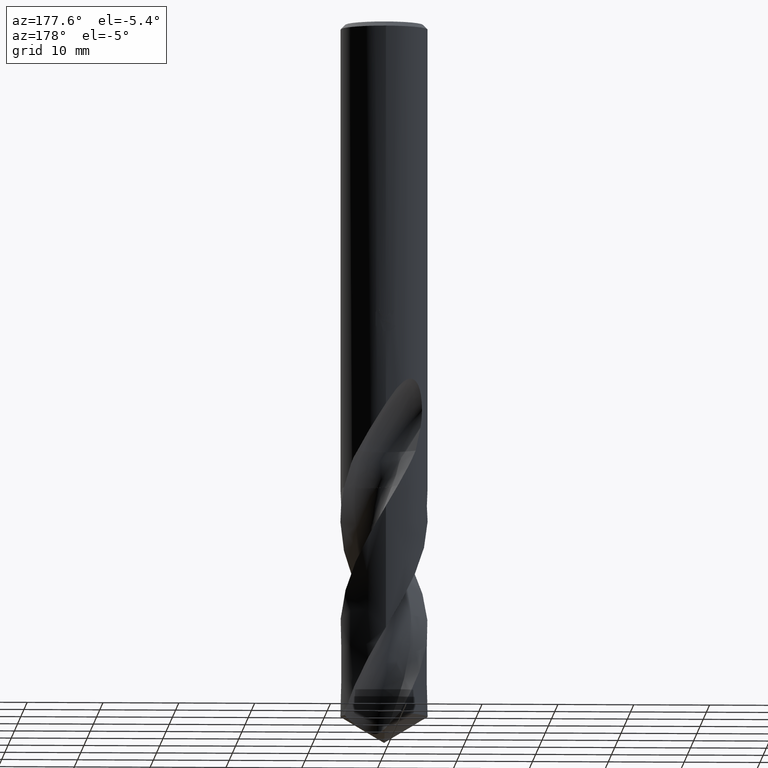
[diagram: clean part render]
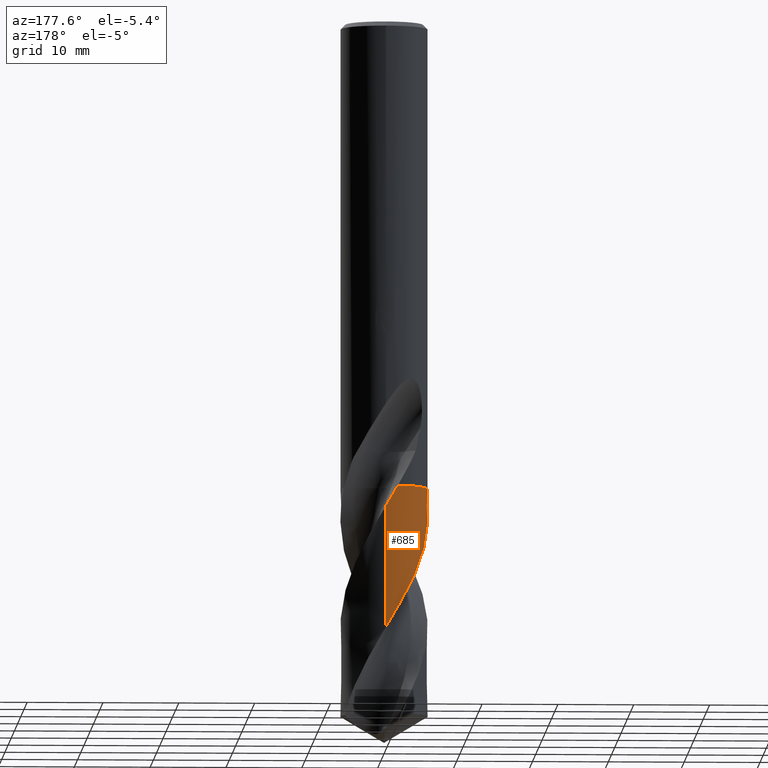
[diagram: same view with one face highlighted and labeled with its STEP entity id]
A machine part, auxiliary view. The second image highlights one B-rep face of the part: STEP entity #685.
In plain terms, the highlighted conical surface has half-angle 0 deg.
Its self-contained STEP definition (entity closure, byte-faithful):
#267=VERTEX_POINT('',#742);
#273=EDGE_CURVE('',#299,#319,#749,.T.);
#275=VERTEX_POINT('',#751);
#279=VERTEX_POINT('',#755);
#287=EDGE_CURVE('',#319,#267,#763,.T.);
#299=VERTEX_POINT('',#775);
#319=VERTEX_POINT('',#797);
#351=EDGE_CURVE('',#267,#275,#832,.T.);
#411=EDGE_CURVE('',#279,#489,#901,.T.);
#489=VERTEX_POINT('',#984);
#623=EDGE_CURVE('',#489,#299,#1131,.T.);
#667=EDGE_CURVE('',#275,#279,#1181,.T.);
#685=ADVANCED_FACE('',(#1199),#1200,.T.);
#742=CARTESIAN_POINT('',(3.20041766304614E-015,5.7499624244146,-80.2178718951749));
#749=B_SPLINE_CURVE_WITH_KNOTS('',3,(#1302,#1303,#1304,#1305,#1306,#1307,#1308,#1309,#1310,#1311,#1312,#1313,#1314,#1315,#1316,#1317,#1318,#1319,#1320,#1321,#1322,#1323,#1324,#1325,#1326,#1327,#1328,#1329,#1330,#1331,#1332,#1333,#1334,#1335,#1336,#1337,#1338,#1339,#1340,#1341,#1342,#1343,#1344,#1345,#1346,#1347,#1348,#1349,#1350,#1351,#1352,#1353,#1354,#1355),.UNSPECIFIED.,.F.,.F.,(4,2,2,2,2,2,2,2,2,2,2,2,2,2,2,2,2,2,2,2,2,2,2,2,2,2,4),(0.0,2.99058218471604,5.09417590476594,6.14555053451025,8.24858072771413,8.77354625455534,10.9154304070789,11.4506291270123,13.5907262284437,14.6614087604156,15.7347783019599,16.2721043805413,17.3438532425549,19.4880628600157,19.7297798634997,21.6359597791469,23.3095110379276,24.7746160400933,25.415098701845,27.8175177233194,28.0428586697684,29.7904662784701,30.446107516333,31.019588796564,33.0280774075556,34.0325649657904,35.0369068433877),.UNSPECIFIED.);
#751=CARTESIAN_POINT('',(-5.36179557689107,-2.07665557865828,-61.405));
#755=CARTESIAN_POINT('',(-5.36071411218029,-2.07944565148289,-61.4));
#763=LINE('',#1389,#1390);
#775=CARTESIAN_POINT('',(-1.61658313120639,5.51797147334416,-61.405));
#797=CARTESIAN_POINT('',(-1.18986122117529E-014,5.74990918113268,-64.1676571706662));
#832=B_SPLINE_CURVE_WITH_KNOTS('',3,(#2861,#2862,#2863,#2864,#2865,#2866,#2867,#2868,#2869,#2870,#2871,#2872,#2873,#2874,#2875,#2876,#2877,#2878,#2879,#2880,#2881,#2882,#2883,#2884,#2885,#2886,#2887,#2888,#2889,#2890,#2891,#2892,#2893,#2894,#2895,#2896,#2897,#2898,#2899,#2900,#2901,#2902,#2903,#2904,#2905,#2906,#2907,#2908,#2909,#2910),.UNSPECIFIED.,.F.,.F.,(4,2,2,2,2,2,2,2,2,2,2,2,2,2,2,2,2,2,2,2,2,2,2,2,4),(0.0,0.941647731960947,1.98477535587764,4.07382297962059,4.59460417437471,5.92103137837952,8.06810609950576,9.14297982474527,10.216909271789,11.9639145555234,13.038573890981,14.9671165081396,15.9034067747389,18.060923154003,18.4564625276565,21.040035445868,21.1159693745982,23.4712200408874,24.1761701578863,25.5453604956562,27.9409924483365,28.8397218571972,30.4101824918901,32.7727497577014,35.1194182658402),.UNSPECIFIED.);
#901=CIRCLE('',#4273,5.7499);
#984=CARTESIAN_POINT('',(-1.61943290344046,5.51713576788304,-61.4));
#1131=B_SPLINE_CURVE_WITH_KNOTS('',3,(#6290,#6291,#6292,#6293),.UNSPECIFIED.,.F.,.F.,(4,4),(0.0,0.00987606609193718),.UNSPECIFIED.);
#1181=B_SPLINE_CURVE_WITH_KNOTS('',3,(#6586,#6587,#6588,#6589),.UNSPECIFIED.,.F.,.F.,(4,4),(0.0,0.0119213895809713),.UNSPECIFIED.);
#1199=FACE_OUTER_BOUND('',#6653,.T.);
#1200=CONICAL_SURFACE('',#6654,5.74995,3.31729405725101E-006);
#1302=CARTESIAN_POINT('',(-1.61734998715461,5.51774674740223,-61.4036546112559));
#1303=CARTESIAN_POINT('',(-1.12883666681916,5.66094167760172,-62.2607317719156));
#1304=CARTESIAN_POINT('',(-0.62351901038473,5.73860128513405,-63.1164037456356));
#1305=CARTESIAN_POINT('',(0.243047594537756,5.7559100260359,-64.5774479238013));
#1306=CARTESIAN_POINT('',(0.600793689765306,5.72962957079828,-65.179793124741));
#1307=CARTESIAN_POINT('',(1.1301806195747,5.64058713684087,-66.0846791022338));
#1308=CARTESIAN_POINT('',(1.30507766635044,5.60270392521229,-66.3859817805289));
#1309=CARTESIAN_POINT('',(1.82357919614719,5.46480401497973,-67.2908543297883));
#1310=CARTESIAN_POINT('',(2.16001318945741,5.34078687680789,-67.8930170396615));
#1311=CARTESIAN_POINT('',(2.56336696490773,5.14769425590522,-68.646784689177));
#1312=CARTESIAN_POINT('',(2.64301898605191,5.10725554911913,-68.7973091529076));
#1313=CARTESIAN_POINT('',(3.04267670377315,4.89250051566813,-69.5623186996234));
#1314=CARTESIAN_POINT('',(3.34658670263547,4.6898706323283,-70.1756803008984));
#1315=CARTESIAN_POINT('',(3.69992750724707,4.40233402303483,-70.9435928288055));
#1316=CARTESIAN_POINT('',(3.76918381363993,4.34318605150958,-71.0970551604285));
#1317=CARTESIAN_POINT('',(4.10819109300873,4.03944264709741,-71.8645219397154));
#1318=CARTESIAN_POINT('',(4.35572550083248,3.7712159714299,-72.4774941890765));
#1319=CARTESIAN_POINT('',(4.68655653186224,3.33634461649002,-73.398551971627));
#1320=CARTESIAN_POINT('',(4.78990188157311,3.18619475681996,-73.705452087709));
#1321=CARTESIAN_POINT('',(4.98220377155731,2.87625326500558,-74.3205926389808));
#1322=CARTESIAN_POINT('',(5.07103704229249,2.71657744982027,-74.628428583419));
#1323=CARTESIAN_POINT('',(5.19271886272451,2.4710123034708,-75.0905236978622));
#1324=CARTESIAN_POINT('',(5.23135550118806,2.38812882186597,-75.2446489876867));
#1325=CARTESIAN_POINT('',(5.3410969702307,2.13725160154031,-75.706251860882));
#1326=CARTESIAN_POINT('',(5.40618787373614,1.96679592626463,-76.0134292855065));
#1327=CARTESIAN_POINT('',(5.57685362917018,1.44696884791411,-76.936128870833));
#1328=CARTESIAN_POINT('',(5.65742561426128,1.09026417649023,-77.5500640594125));
#1329=CARTESIAN_POINT('',(5.70885943819984,0.687465291477992,-78.2345355293048));
#1330=CARTESIAN_POINT('',(5.71363162055675,0.646607004588638,-78.3038700195977));
#1331=CARTESIAN_POINT('',(5.75213772172567,0.28311966360785,-78.9201132391666));
#1332=CARTESIAN_POINT('',(5.75895242954577,-0.0417968041966504,-79.466457137538));
#1333=CARTESIAN_POINT('',(5.72022476129946,-0.649790979499311,-80.493534346358));
#1334=CARTESIAN_POINT('',(5.68102735739467,-0.932255492981021,-80.9729007842047));
#1335=CARTESIAN_POINT('',(5.56859860057988,-1.4542962093602,-81.8735239374303));
#1336=CARTESIAN_POINT('',(5.50031639808184,-1.69435900848095,-82.2934833436511));
#1337=CARTESIAN_POINT('',(5.38007002670866,-2.03196968231927,-82.8975889133944));
#1338=CARTESIAN_POINT('',(5.34058451981475,-2.13359182498835,-83.0812577028844));
#1339=CARTESIAN_POINT('',(5.13939533353383,-2.61074182586139,-83.9543683047436));
#1340=CARTESIAN_POINT('',(4.94079942837743,-2.96950651393044,-84.6421299071413));
#1341=CARTESIAN_POINT('',(4.68376557200343,-3.3355774293852,-85.3960909241602));
#1342=CARTESIAN_POINT('',(4.66141205794628,-3.36674569662718,-85.4607373006208));
#1343=CARTESIAN_POINT('',(4.46298265322398,-3.63765782136798,-86.0268637667295));
#1344=CARTESIAN_POINT('',(4.26885655493333,-3.86363147442052,-86.5279772873799));
#1345=CARTESIAN_POINT('',(3.97907394727661,-4.15231962939736,-87.2176176238084));
#1346=CARTESIAN_POINT('',(3.89773385039702,-4.22876700551323,-87.4057065021257));
#1347=CARTESIAN_POINT('',(3.74115739601347,-4.36756543407578,-87.758394223369));
#1348=CARTESIAN_POINT('',(3.66647623788313,-4.43044472059051,-87.9228842173417));
#1349=CARTESIAN_POINT('',(3.32322451018118,-4.70482960055182,-88.6638607336837));
#1350=CARTESIAN_POINT('',(3.03768159615285,-4.89405675668087,-89.2394890612453));
#1351=CARTESIAN_POINT('',(2.58663641149776,-5.13818971110856,-90.1041481218083));
#1352=CARTESIAN_POINT('',(2.43271384550462,-5.21282948695452,-90.3922261864737));
#1353=CARTESIAN_POINT('',(2.11871133701709,-5.34815516784216,-90.9687342269824));
#1354=CARTESIAN_POINT('',(1.95876093282727,-5.40878766008015,-91.2568447284777));
#1355=CARTESIAN_POINT('',(1.79632452488735,-5.46220817996608,-91.5450514405916));
#1389=CARTESIAN_POINT('',(-7.04590510007028E-016,5.74995,-76.4725257202957));
#1390=VECTOR('',#6912,1.0);
#2861=CARTESIAN_POINT('',(5.29059270861493,2.25213871498861,-91.5450514405914));
#2862=CARTESIAN_POINT('',(5.22788668778779,2.3994417494547,-91.2750661755595));
#2863=CARTESIAN_POINT('',(5.15904600831951,2.54408562788656,-91.0054738303697));
#2864=CARTESIAN_POINT('',(5.00137831320194,2.8425598712997,-90.436490867594));
#2865=CARTESIAN_POINT('',(4.91132920638735,2.99545392511039,-90.13705451946));
#2866=CARTESIAN_POINT('',(4.62015874739756,3.44132128832589,-89.239169855037));
#2867=CARTESIAN_POINT('',(4.39890112779263,3.71994203584916,-88.6437004279399));
#2868=CARTESIAN_POINT('',(4.09234849253997,4.04015710550025,-87.8954112792793));
#2869=CARTESIAN_POINT('',(4.02975650241857,4.10258947371581,-87.7459630463806));
#2870=CARTESIAN_POINT('',(3.80258972134985,4.31895753104603,-87.2163486169341));
#2871=CARTESIAN_POINT('',(3.63034610785515,4.46473163719525,-86.837063792977));
#2872=CARTESIAN_POINT('',(3.15759010438639,4.81926637377524,-85.8418407740625));
#2873=CARTESIAN_POINT('',(2.84524886197869,5.0100059324149,-85.2258394688756));
#2874=CARTESIAN_POINT('',(2.35256668024932,5.24986401400538,-84.3025058064267));
#2875=CARTESIAN_POINT('',(2.18448954441519,5.32199466205102,-83.9949627139832));
#2876=CARTESIAN_POINT('',(1.84221326769227,5.44993484926959,-83.3791537900144));
#2877=CARTESIAN_POINT('',(1.66831631643486,5.50564489315917,-83.0708763027127));
#2878=CARTESIAN_POINT('',(1.20590303517526,5.62990900273608,-82.2627259581148));
#2879=CARTESIAN_POINT('',(0.913879206969131,5.68463362897087,-81.7644265141676));
#2880=CARTESIAN_POINT('',(0.437240523501855,5.73622322964584,-80.9564589771652));
#2881=CARTESIAN_POINT('',(0.255005808417896,5.74719837423171,-80.6482055078936));
#2882=CARTESIAN_POINT('',(-0.254398471436276,5.75363864123733,-79.7884915724204));
#2883=CARTESIAN_POINT('',(-0.581328120977006,5.72985238031404,-79.2393149662353));
#2884=CARTESIAN_POINT('',(-1.0614635561854,5.65336561541122,-78.4194712108754));
#2885=CARTESIAN_POINT('',(-1.21716665087663,5.6218956098806,-78.1510723535405));
#2886=CARTESIAN_POINT('',(-1.72673412349295,5.49674799564908,-77.2658110449934));
#2887=CARTESIAN_POINT('',(-2.07281220666928,5.37578866301147,-76.6524610650547));
#2888=CARTESIAN_POINT('',(-2.4658638299339,5.19479682035515,-75.9218997269201));
#2889=CARTESIAN_POINT('',(-2.52621517204816,5.16571646636501,-75.8086543072639));
#2890=CARTESIAN_POINT('',(-2.97697590846444,4.93872902844701,-74.9563802933547));
#2891=CARTESIAN_POINT('',(-3.34396503741081,4.69798282646414,-74.2241086978141));
#2892=CARTESIAN_POINT('',(-3.68991189827015,4.40982149814476,-73.4633322336673));
#2893=CARTESIAN_POINT('',(-3.6997563719588,4.40156536758418,-73.441617857128));
#2894=CARTESIAN_POINT('',(-4.01447915753743,4.13581665062136,-72.7456474783359));
#2895=CARTESIAN_POINT('',(-4.29185515623193,3.84724242993664,-72.0766812636945));
#2896=CARTESIAN_POINT('',(-4.6106467073045,3.43772501385124,-71.2012020463144));
#2897=CARTESIAN_POINT('',(-4.68106873700524,3.34119485625875,-70.9992620953959));
#2898=CARTESIAN_POINT('',(-4.87928158491965,3.05092466336303,-70.4060145385098));
#2899=CARTESIAN_POINT('',(-4.99850145649163,2.85143098591718,-70.0154689215302));
#2900=CARTESIAN_POINT('',(-5.29242926209725,2.28410443490822,-68.9392909426014));
#2901=CARTESIAN_POINT('',(-5.44062557222192,1.90433632614894,-68.2540104012115));
#2902=CARTESIAN_POINT('',(-5.58764757369932,1.36492979696426,-67.3123544093275));
#2903=CARTESIAN_POINT('',(-5.62186878849074,1.21629821664208,-67.0557287071569));
#2904=CARTESIAN_POINT('',(-5.69952965612219,0.804869884672083,-66.3497374445495));
#2905=CARTESIAN_POINT('',(-5.73069761953321,0.5400528555295,-65.8996260552787));
#2906=CARTESIAN_POINT('',(-5.76248148043429,-0.126646205113222,-64.7750869433314));
#2907=CARTESIAN_POINT('',(-5.73961308568315,-0.52777693443462,-64.103440075905));
#2908=CARTESIAN_POINT('',(-5.61153327047647,-1.31537076595852,-62.7563443910608));
#2909=CARTESIAN_POINT('',(-5.50699017048106,-1.70180127284542,-62.0767230916124));
#2910=CARTESIAN_POINT('',(-5.36175278728634,-2.07676605355927,-61.4048020341639));
#4273=AXIS2_PLACEMENT_3D('',#7066,#7067,#7068);
#6290=CARTESIAN_POINT('',(-1.61943290344043,5.51713576788305,-61.4000000000001));
#6291=CARTESIAN_POINT('',(-1.6178198310002,5.51760925932549,-61.4028304084877));
#6292=CARTESIAN_POINT('',(-1.61620653942263,5.51808204670383,-61.4056608094661));
#6293=CARTESIAN_POINT('',(-1.61459302914694,5.51855412985633,-61.4084912035964));
#6586=CARTESIAN_POINT('',(-5.36292505154367,-2.07373703534533,-61.4102295143905));
#6587=CARTESIAN_POINT('',(-5.36218912258139,-2.07564020183168,-61.4068196134057));
#6588=CARTESIAN_POINT('',(-5.36145214280205,-2.07754307416468,-61.4034097755386));
#6589=CARTESIAN_POINT('',(-5.36071411218027,-2.07944565148288,-61.4));
#6653=EDGE_LOOP('',(#7338,#7339,#7340,#7341,#7342,#7343));
#6654=AXIS2_PLACEMENT_3D('',#7344,#7345,#7346);
#6912=DIRECTION('',(-4.06237937999934E-022,3.31729405724492E-006,-0.999999999994498));
#7066=CARTESIAN_POINT('',(0.0,0.0,-61.4));
#7067=DIRECTION('',(0.0,0.0,-1.0));
#7068=DIRECTION('',(0.0,1.0,0.0));
#7338=ORIENTED_EDGE('',*,*,#287,.T.);
#7339=ORIENTED_EDGE('',*,*,#351,.T.);
#7340=ORIENTED_EDGE('',*,*,#667,.T.);
#7341=ORIENTED_EDGE('',*,*,#411,.T.);
#7342=ORIENTED_EDGE('',*,*,#623,.T.);
#7343=ORIENTED_EDGE('',*,*,#273,.T.);
#7344=CARTESIAN_POINT('',(0.0,0.0,-76.4725257202958));
#7345=DIRECTION('',(0.0,-0.0,-1.0));
#7346=DIRECTION('',(0.0,1.0,0.0));